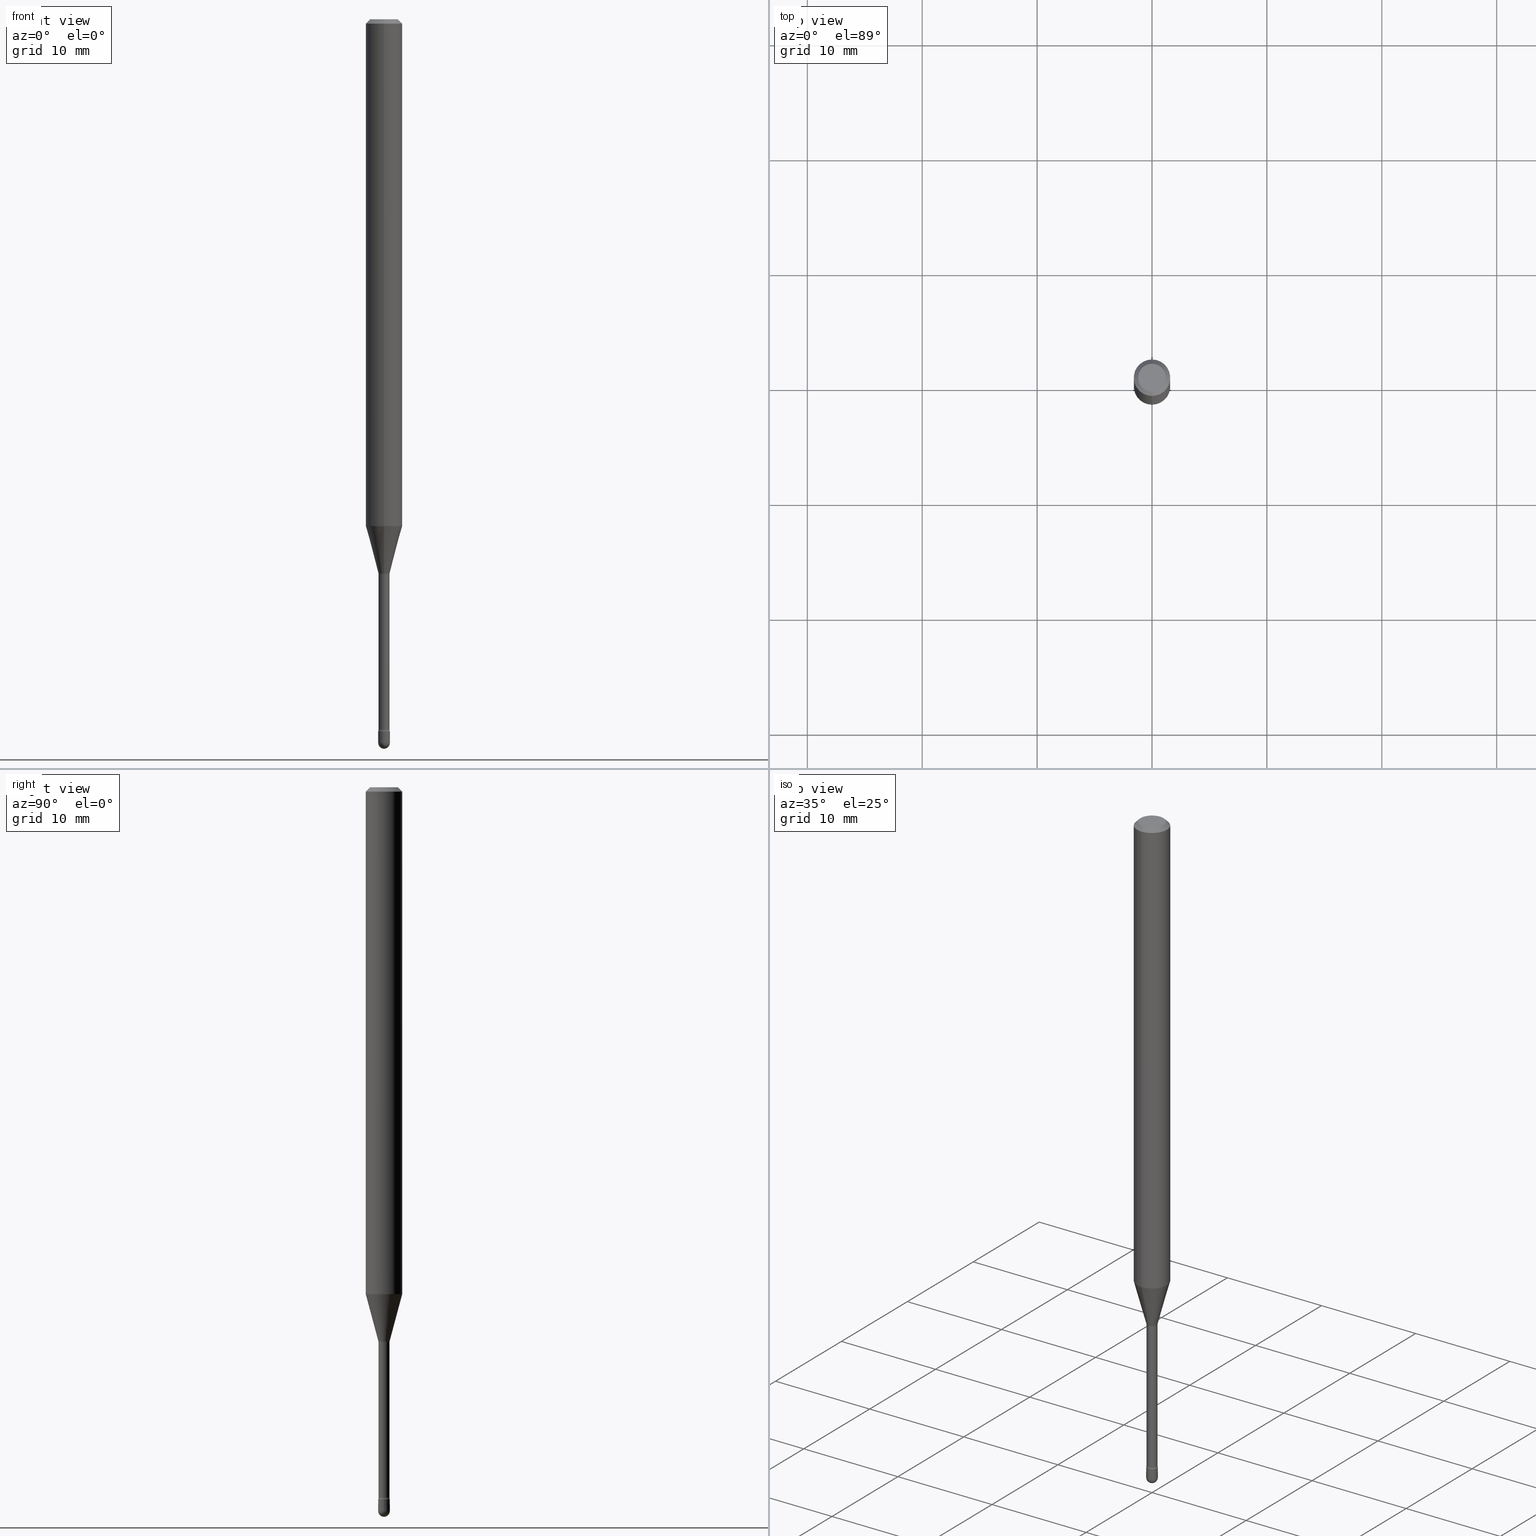
[diagram: canonical four-view strip — front | top / right | iso, engineering-drawing reading convention]
A machine part, canonical four-view strip (front | top / right | iso — engineering-drawing reading convention). The complete STEP part file that produces these views, byte-faithful:
ISO-10303-21;
HEADER;
FILE_DESCRIPTION (( 'STEP AP203' ),
    '1' );
FILE_NAME ('03920.STEP',
    '2024-04-09T21:10:38',
    ( '' ),
    ( '' ),
    'SwSTEP 2.0',
    'SolidWorks 2023',
    '' );
FILE_SCHEMA (( 'CONFIG_CONTROL_DESIGN' ));
ENDSEC;

DATA;
#1 = CARTESIAN_POINT ( 'NONE',  ( -1.312796983405020974E-16, -0.01880000000000004237, 5.437146037398076934E-16 ) ) ;
#2 = ORIENTED_EDGE ( 'NONE', *, *, #63, .F. ) ;
#3 = ORIENTED_EDGE ( 'NONE', *, *, #358, .T. ) ;
#4 = APPLICATION_PROTOCOL_DEFINITION ( 'international standard', 'config_control_design', 1994, #347 ) ;
#5 = AXIS2_PLACEMENT_3D ( 'NONE', #544, #328, #539 ) ;
#6 = EDGE_CURVE ( 'NONE', #454, #184, #68, .T. ) ;
#7 = CARTESIAN_POINT ( 'NONE',  ( 0.000000000000000000, 0.000000000000000000, 0.000000000000000000 ) ) ;
#8 = VECTOR ( 'NONE', #540, 39.37007874015748143 ) ;
#9 = AXIS2_PLACEMENT_3D ( 'NONE', #183, #300, #468 ) ;
#10 = CARTESIAN_POINT ( 'NONE',  ( 6.064762639339139522E-29, -8.658873720331001644E-15, -2.480000000000000426 ) ) ;
#11 = PRODUCT_RELATED_PRODUCT_CATEGORY ( 'detail', '', ( #19 ) ) ;
#12 = DIRECTION ( 'NONE',  ( 2.445418451658306189E-29, -3.491553449391568423E-15, -1.000000000000000000 ) ) ;
#13 = PLANE ( 'NONE',  #296 ) ;
#14 = EDGE_CURVE ( 'NONE', #398, #251, #387, .T. ) ;
#15 = AXIS2_PLACEMENT_3D ( 'NONE', #258, #342, #35 ) ;
#16 = VECTOR ( 'NONE', #241, 39.37007874015748143 ) ;
#17 = DIRECTION ( 'NONE',  ( -6.982962677686265922E-15, -1.000000000000000000, 3.491553449391569212E-15 ) ) ;
#18 = EDGE_LOOP ( 'NONE', ( #360, #233, #402, #432 ) ) ;
#19 = PRODUCT ( '03920', '03920', '', ( #235 ) ) ;
#20 = CARTESIAN_POINT ( 'NONE',  ( -4.364351673553916201E-16, -0.06250000000000000000, 6.962954894782191143E-16 ) ) ;
#21 = ORIENTED_EDGE ( 'NONE', *, *, #269, .T. ) ;
#22 = SECURITY_CLASSIFICATION ( '', '', #304 ) ;
#23 = DIRECTION ( 'NONE',  ( -1.000000000000000000, 7.105427357601001070E-15, -4.926315508542082329E-29 ) ) ;
#24 = ADVANCED_FACE ( 'NONE', ( #376 ), #211, .F. ) ;
#25 = ORIENTED_EDGE ( 'NONE', *, *, #507, .F. ) ;
#26 = DIRECTION ( 'NONE',  ( -1.000000000000000000, 6.982962677686265922E-15, -4.883557194083112340E-29 ) ) ;
#27 = CARTESIAN_POINT ( 'NONE',  ( 6.064762639339139522E-29, -8.658873720331001644E-15, -2.480000000000000426 ) ) ;
#28 = AXIS2_PLACEMENT_3D ( 'NONE', #326, #464, #543 ) ;
#29 = APPLICATION_PROTOCOL_DEFINITION ( 'international standard', 'config_control_design', 1994, #107 ) ;
#30 = FACE_OUTER_BOUND ( 'NONE', #161, .T. ) ;
#31 = CC_DESIGN_PERSON_AND_ORGANIZATION_ASSIGNMENT ( #521, #483, ( #373 ) ) ;
#32 = LOCAL_TIME ( 17, 10, 38.00000000000000000, #102 ) ;
#33 = CYLINDRICAL_SURFACE ( 'NONE', #341, 0.02000000000000000042 ) ;
#34 = EDGE_LOOP ( 'NONE', ( #190, #346, #490, #476 ) ) ;
#35 = DIRECTION ( 'NONE',  ( -6.982962677686265922E-15, -1.000000000000000000, 3.483106191921935554E-15 ) ) ;
#36 = AXIS2_PLACEMENT_3D ( 'NONE', #327, #541, #167 ) ;
#37 = AXIS2_PLACEMENT_3D ( 'NONE', #189, #193, #448 ) ;
#38 = DIRECTION ( 'NONE',  ( -1.000000000000000000, 6.982962677686265922E-15, -4.883557194083112340E-29 ) ) ;
#39 = ORIENTED_EDGE ( 'NONE', *, *, #53, .T. ) ;
#40 = EDGE_LOOP ( 'NONE', ( #194, #74, #559, #187 ) ) ;
#41 = COORDINATED_UNIVERSAL_TIME_OFFSET ( 5, 0, .BEHIND. ) ;
#42 = CARTESIAN_POINT ( 'NONE',  ( 0.000000000000000000, 0.000000000000000000, 0.000000000000000000 ) ) ;
#43 = ADVANCED_FACE ( 'NONE', ( #30 ), #351, .F. ) ;
#44 = CARTESIAN_POINT ( 'NONE',  ( 4.247470245999360012E-29, -6.064511936004368294E-15, -1.736909379709240531 ) ) ;
#45 = CIRCLE ( 'NONE', #15, 0.06250000000000000000 ) ;
#46 = ORIENTED_EDGE ( 'NONE', *, *, #115, .T. ) ;
#47 = VECTOR ( 'NONE', #548, 39.37007874015748143 ) ;
#48 = CALENDAR_DATE ( 2024, 9, 4 ) ;
#49 = CARTESIAN_POINT ( 'NONE',  ( 3.316907271900976096E-16, 0.04749999999999999362, 3.181610718927589537E-17 ) ) ;
#50 = EDGE_LOOP ( 'NONE', ( #227, #416, #436, #395 ) ) ;
#51 = ORIENTED_EDGE ( 'NONE', *, *, #430, .F. ) ;
#52 = PERSON_AND_ORGANIZATION ( #80, #542 ) ;
#53 = EDGE_CURVE ( 'NONE', #164, #170, #159, .T. ) ;
#54 = DIRECTION ( 'NONE',  ( -2.445468806185136597E-29, 3.491481338843145583E-15, 1.000000000000000000 ) ) ;
#55 = APPROVAL_PERSON_ORGANIZATION ( #275, #285, #230 ) ;
#56 = ORIENTED_EDGE ( 'NONE', *, *, #547, .F. ) ;
#57 = DIRECTION ( 'NONE',  ( -6.982962677686265922E-15, -1.000000000000000000, 0.000000000000000000 ) ) ;
#58 = CLOSED_SHELL ( 'NONE', ( #223, #72, #424, #100, #318 ) ) ;
#59 = AXIS2_PLACEMENT_3D ( 'NONE', #49, #324, #105 ) ;
#60 = DIRECTION ( 'NONE',  ( 1.000000000000000000, -6.982962677686235945E-15, 0.000000000000000000 ) ) ;
#61 = DIRECTION ( 'NONE',  ( 6.982962677686265922E-15, 1.000000000000000000, 0.000000000000000000 ) ) ;
#62 = LOCAL_TIME ( 17, 10, 38.00000000000000000, #191 ) ;
#63 = EDGE_CURVE ( 'NONE', #210, #511, #520, .T. ) ;
#64 = DIRECTION ( 'NONE',  ( 1.000000000000000000, -6.982962677686235945E-15, 0.000000000000000000 ) ) ;
#65 = MANIFOLD_SOLID_BREP ( 'Body-Move/Copy2[1]', #58 ) ;
#66 = VERTEX_POINT ( 'NONE', #509 ) ;
#67 = APPROVAL_DATE_TIME ( #322, #478 ) ;
#68 = CIRCLE ( 'NONE', #362, 0.01880000000000000074 ) ;
#69 = CIRCLE ( 'NONE', #196, 0.04749999999999999362 ) ;
#70 = FACE_OUTER_BOUND ( 'NONE', #303, .T. ) ;
#71 = CARTESIAN_POINT ( 'NONE',  ( 4.651220012893355916E-29, -6.640709477380055554E-15, -1.901974787463811323 ) ) ;
#72 = ADVANCED_FACE ( 'NONE', ( #249 ), #295, .T. ) ;
#73 = CARTESIAN_POINT ( 'NONE',  ( -4.364351673553493174E-16, -0.06250000000000607847, -1.736909379709240309 ) ) ;
#74 = ORIENTED_EDGE ( 'NONE', *, *, #554, .T. ) ;
#75 = DIMENSIONAL_EXPONENTS ( 1.000000000000000000, 0.000000000000000000, 0.000000000000000000, 0.000000000000000000, 0.000000000000000000, 0.000000000000000000, 0.000000000000000000 ) ;
#76 = MANIFOLD_SOLID_BREP ( 'Body-Move/Copy2[2]', #139 ) ;
#77 = CARTESIAN_POINT ( 'NONE',  ( -2.360241385057492693E-16, -0.03380000000000664417, -1.901974787463811323 ) ) ;
#78 = ORIENTED_EDGE ( 'NONE', *, *, #308, .F. ) ;
#79 = PERSON_AND_ORGANIZATION ( #80, #542 ) ;
#80 = PERSON ( 'UNSPECIFIED', 'UNSPECIFIED', 'UNSPECIFIED', ('UNSPECIFIED'), ('UNSPECIFIED'), ('UNSPECIFIED') ) ;
#81 = VECTOR ( 'NONE', #558, 39.37007874015748143 ) ;
#82 = ORIENTED_EDGE ( 'NONE', *, *, #14, .T. ) ;
#83 = CARTESIAN_POINT ( 'NONE',  ( 3.668127677487478919E-31, -5.237330174087381797E-17, -0.01500000000000008271 ) ) ;
#84 = ORIENTED_EDGE ( 'NONE', *, *, #53, .F. ) ;
#85 = CC_DESIGN_APPROVAL ( #285, ( #338 ) ) ;
#86 = CARTESIAN_POINT ( 'NONE',  ( 3.668127677487478919E-31, -5.237330174087381797E-17, -0.01500000000000008271 ) ) ;
#87 = UNCERTAINTY_MEASURE_WITH_UNIT (LENGTH_MEASURE( 1.000000000000000082E-05 ), #320, 'distance_accuracy_value', 'NONE');
#88 = CARTESIAN_POINT ( 'NONE',  ( 6.064762639339139522E-29, -8.658873720331001644E-15, -2.480000000000000426 ) ) ;
#89 = ORIENTED_EDGE ( 'NONE', *, *, #513, .T. ) ;
#90 = AXIS2_PLACEMENT_3D ( 'NONE', #536, #156, #106 ) ;
#91 = ORIENTED_EDGE ( 'NONE', *, *, #278, .F. ) ;
#92 = ADVANCED_FACE ( 'NONE', ( #499 ), #457, .T. ) ;
#93 = DIRECTION ( 'NONE',  ( -6.982962677686265922E-15, -1.000000000000000000, 3.483106191921935554E-15 ) ) ;
#94 = ORIENTED_EDGE ( 'NONE', *, *, #400, .T. ) ;
#95 =( NAMED_UNIT ( * ) PLANE_ANGLE_UNIT ( ) SI_UNIT ( $, .RADIAN. ) );
#96 = CARTESIAN_POINT ( 'NONE',  ( 6.064762639339139522E-29, -8.658873720331001644E-15, -2.480000000000000426 ) ) ;
#97 = PERSON_AND_ORGANIZATION_ROLE ( 'design_supplier' ) ;
#98 = LINE ( 'NONE', #316, #273 ) ;
#99 = AXIS2_PLACEMENT_3D ( 'NONE', #297, #186, #561 ) ;
#100 = ADVANCED_FACE ( 'NONE', ( #177 ), #302, .T. ) ;
#101 = AXIS2_PLACEMENT_3D ( 'NONE', #86, #470, #306 ) ;
#102 = COORDINATED_UNIVERSAL_TIME_OFFSET ( 5, 0, .BEHIND. ) ;
#103 = DIRECTION ( 'NONE',  ( -2.445418451658306189E-29, 3.491553449391568423E-15, 1.000000000000000000 ) ) ;
#104 = ORIENTED_EDGE ( 'NONE', *, *, #136, .F. ) ;
#105 = DIRECTION ( 'NONE',  ( 6.982962677686265922E-15, 1.000000000000000000, -3.491553449391568423E-15 ) ) ;
#106 = DIRECTION ( 'NONE',  ( -6.982962677686265922E-15, -1.000000000000000000, 3.491553449391569212E-15 ) ) ;
#107 = APPLICATION_CONTEXT ( 'configuration controlled 3d designs of mechanical parts and assemblies' ) ;
#108 = AXIS2_PLACEMENT_3D ( 'NONE', #172, #284, #329 ) ;
#109 = EDGE_CURVE ( 'NONE', #274, #384, #116, .T. ) ;
#110 = DIRECTION ( 'NONE',  ( 1.000000000000000000, -6.982962677686284065E-15, 0.000000000000000000 ) ) ;
#111 = CARTESIAN_POINT ( 'NONE',  ( 3.840629472727447874E-16, 0.04749999999999999362, -2.485923956665947867E-16 ) ) ;
#112 = DIRECTION ( 'NONE',  ( -2.445418451658306189E-29, 3.491553449391568423E-15, 1.000000000000000000 ) ) ;
#113 = DIRECTION ( 'NONE',  ( -6.982962677686265922E-15, -1.000000000000000000, 3.491553449391568817E-15 ) ) ;
#114 = ORIENTED_EDGE ( 'NONE', *, *, #269, .F. ) ;
#115 = EDGE_CURVE ( 'NONE', #66, #262, #439, .T. ) ;
#116 = CIRCLE ( 'NONE', #255, 0.06250000000000000000 ) ;
#117 = EDGE_LOOP ( 'NONE', ( #528, #516, #392, #84 ) ) ;
#118 = CIRCLE ( 'NONE', #5, 0.02000000000000000042 ) ;
#119 = DIRECTION ( 'NONE',  ( -6.982962677686266711E-15, -1.000000000000000000, 0.000000000000000000 ) ) ;
#120 = DIRECTION ( 'NONE',  ( -2.445418451658306189E-29, 3.491553449391568423E-15, 1.000000000000000000 ) ) ;
#121 = CC_DESIGN_DATE_AND_TIME_ASSIGNMENT ( #307, #531, ( #22 ) ) ;
#122 = DIRECTION ( 'NONE',  ( -6.982962677686265133E-15, -1.000000000000000000, 0.000000000000000000 ) ) ;
#123 = ORIENTED_EDGE ( 'NONE', *, *, #564, .T. ) ;
#124 = CARTESIAN_POINT ( 'NONE',  ( -0.02000000000000000042, -8.446935546402118183E-15, -2.440000000000000391 ) ) ;
#125 = CIRCLE ( 'NONE', #220, 0.01500000000000003240 ) ;
#126 = CARTESIAN_POINT ( 'NONE',  ( 4.641630426824874302E-29, -6.627291421879626172E-15, -1.898092501787273401 ) ) ;
#127 = AXIS2_PLACEMENT_3D ( 'NONE', #27, #381, #383 ) ;
#128 = CIRCLE ( 'NONE', #450, 0.02000000000000000042 ) ;
#129 = EDGE_CURVE ( 'NONE', #445, #274, #474, .T. ) ;
#130 = FACE_OUTER_BOUND ( 'NONE', #288, .T. ) ;
#131 = ORIENTED_EDGE ( 'NONE', *, *, #204, .F. ) ;
#132 = DESIGN_CONTEXT ( 'detailed design', #347, 'design' ) ;
#133 = APPROVAL_PERSON_ORGANIZATION ( #382, #145, #271 ) ;
#134 = VERTEX_POINT ( 'NONE', #264 ) ;
#135 = ORIENTED_EDGE ( 'NONE', *, *, #430, .T. ) ;
#136 = EDGE_CURVE ( 'NONE', #469, #466, #396, .T. ) ;
#137 = PERSON_AND_ORGANIZATION ( #80, #542 ) ;
#138 = DIRECTION ( 'NONE',  ( -2.445418451658306189E-29, 3.491553449391568423E-15, 1.000000000000000000 ) ) ;
#139 = CLOSED_SHELL ( 'NONE', ( #24, #535, #43, #369, #332, #92, #299, #485, #180, #375, #239, #163, #455, #216 ) ) ;
#140 = AXIS2_PLACEMENT_3D ( 'NONE', #10, #365, #61 ) ;
#141 = APPROVAL_STATUS ( 'not_yet_approved' ) ;
#142 = DIRECTION ( 'NONE',  ( 6.982962677686265133E-15, 1.000000000000000000, 0.000000000000000000 ) ) ;
#143 = ORIENTED_EDGE ( 'NONE', *, *, #109, .T. ) ;
#144 = DATE_AND_TIME ( #48, #32 ) ;
#145 = APPROVAL ( #434, 'UNSPECIFIED' ) ;
#146 = DIRECTION ( 'NONE',  ( -2.445418451658306189E-29, 3.491553449391568423E-15, 1.000000000000000000 ) ) ;
#147 = EDGE_LOOP ( 'NONE', ( #78, #553, #46, #313 ) ) ;
#148 = PERSON_AND_ORGANIZATION_ROLE ( 'design_owner' ) ;
#149 = AXIS2_PLACEMENT_3D ( 'NONE', #244, #410, #17 ) ;
#150 = DIRECTION ( 'NONE',  ( -2.445468806185136597E-29, 3.491481338843145583E-15, 1.000000000000000000 ) ) ;
#151 = ORIENTED_EDGE ( 'NONE', *, *, #325, .T. ) ;
#152 = CIRCLE ( 'NONE', #532, 0.01999999999999989286 ) ;
#153 = CIRCLE ( 'NONE', #232, 0.02000000000000000042 ) ;
#154 =( NAMED_UNIT ( * ) SI_UNIT ( $, .STERADIAN. ) SOLID_ANGLE_UNIT ( ) );
#155 = DIRECTION ( 'NONE',  ( 1.000000000000000000, -6.982962677686265922E-15, 4.876176775795935793E-29 ) ) ;
#156 = DIRECTION ( 'NONE',  ( -2.445418451658306189E-29, 3.491553449391568423E-15, 1.000000000000000000 ) ) ;
#157 = EDGE_CURVE ( 'NONE', #384, #274, #45, .T. ) ;
#158 = CARTESIAN_POINT ( 'NONE',  ( -4.364351673553912750E-16, -0.06250000000000005551, -0.01499999999999986587 ) ) ;
#159 = CIRCLE ( 'NONE', #127, 0.02000000000000000042 ) ;
#160 = CARTESIAN_POINT ( 'NONE',  ( -1.348487785899018972E-16, -0.01931111260567060575, -1.898092501787273401 ) ) ;
#161 = EDGE_LOOP ( 'NONE', ( #501, #442, #21, #475 ) ) ;
#162 = DIRECTION ( 'NONE',  ( -7.105427357601000281E-15, -1.000000000000000000, 0.000000000000000000 ) ) ;
#163 = ADVANCED_FACE ( 'NONE', ( #479 ), #340, .F. ) ;
#164 = VERTEX_POINT ( 'NONE', #388 ) ;
#165 = AXIS2_PLACEMENT_3D ( 'NONE', #294, #171, #374 ) ;
#166 = LINE ( 'NONE', #334, #237 ) ;
#167 = DIRECTION ( 'NONE',  ( -6.982962677686265922E-15, -1.000000000000000000, 3.491553449391568817E-15 ) ) ;
#168 = VECTOR ( 'NONE', #496, 39.37007874015748854 ) ;
#169 = CARTESIAN_POINT ( 'NONE',  ( 4.651124239852889729E-29, -6.640846629825066582E-15, -1.901974787463811323 ) ) ;
#170 = VERTEX_POINT ( 'NONE', #261 ) ;
#171 = DIRECTION ( 'NONE',  ( 1.000000000000000000, -7.105427357601001070E-15, 4.926316391641605447E-29 ) ) ;
#172 = CARTESIAN_POINT ( 'NONE',  ( 5.966943887091733341E-29, -8.519214466777275048E-15, -2.440000000000000391 ) ) ;
#173 = EDGE_CURVE ( 'NONE', #134, #66, #411, .T. ) ;
#174 = DIRECTION ( 'NONE',  ( 1.000000000000000000, -6.982962677686235945E-15, 0.000000000000000000 ) ) ;
#175 = CIRCLE ( 'NONE', #246, 0.01931111260566397564 ) ;
#176 = AXIS2_PLACEMENT_3D ( 'NONE', #267, #138, #435 ) ;
#177 = FACE_OUTER_BOUND ( 'NONE', #117, .T. ) ;
#178 = CARTESIAN_POINT ( 'NONE',  ( 0.02000000000000000042, -8.658873720331001644E-15, -2.440000000000000391 ) ) ;
#179 = VERTEX_POINT ( 'NONE', #481 ) ;
#180 = ADVANCED_FACE ( 'NONE', ( #518 ), #477, .T. ) ;
#181 = VERTEX_POINT ( 'NONE', #552 ) ;
#182 = CIRCLE ( 'NONE', #492, 0.01880000000000008401 ) ;
#183 = CARTESIAN_POINT ( 'NONE',  ( 5.952444956252308774E-29, -8.498864358049834295E-15, -2.434121224617320944 ) ) ;
#184 = VERTEX_POINT ( 'NONE', #339 ) ;
#185 = PERSON_AND_ORGANIZATION ( #80, #542 ) ;
#186 = DIRECTION ( 'NONE',  ( -2.445418451658306189E-29, 3.491553449391568423E-15, 1.000000000000000000 ) ) ;
#187 = ORIENTED_EDGE ( 'NONE', *, *, #493, .F. ) ;
#188 = ORIENTED_EDGE ( 'NONE', *, *, #493, .T. ) ;
#189 = CARTESIAN_POINT ( 'NONE',  ( 2.401634446869738422E-16, 0.03379999999999157290, -2.434121224617320944 ) ) ;
#190 = ORIENTED_EDGE ( 'NONE', *, *, #14, .F. ) ;
#191 = COORDINATED_UNIVERSAL_TIME_OFFSET ( 5, 0, .BEHIND. ) ;
#192 = CC_DESIGN_PERSON_AND_ORGANIZATION_ASSIGNMENT ( #185, #524, ( #338 ) ) ;
#193 = DIRECTION ( 'NONE',  ( 1.000000000000000000, -7.105427357601001070E-15, 4.926316391641605447E-29 ) ) ;
#194 = ORIENTED_EDGE ( 'NONE', *, *, #136, .T. ) ;
#195 = DIRECTION ( 'NONE',  ( -2.445468806185136597E-29, 3.491481338843145583E-15, 1.000000000000000000 ) ) ;
#196 = AXIS2_PLACEMENT_3D ( 'NONE', #566, #146, #534 ) ;
#197 = SHAPE_DEFINITION_REPRESENTATION ( #409, #215 ) ;
#198 = CARTESIAN_POINT ( 'NONE',  ( 5.966821022046268155E-29, -8.519390416515428324E-15, -2.440000000000000391 ) ) ;
#199 = EDGE_CURVE ( 'NONE', #170, #210, #557, .T. ) ;
#200 = DIRECTION ( 'NONE',  ( 6.982962677686265922E-15, 1.000000000000000000, -3.483106191921935554E-15 ) ) ;
#201 = ORIENTED_EDGE ( 'NONE', *, *, #234, .T. ) ;
#202 = CARTESIAN_POINT ( 'NONE',  ( 4.440892098501048202E-16, 0.06249999999999392153, -1.736909379709240753 ) ) ;
#203 = AXIS2_PLACEMENT_3D ( 'NONE', #236, #150, #64 ) ;
#204 = EDGE_CURVE ( 'NONE', #519, #164, #153, .T. ) ;
#205 = CARTESIAN_POINT ( 'NONE',  ( -1.312796983404552834E-16, -0.01880000000000664126, -1.901974787463811323 ) ) ;
#206 = ORIENTED_EDGE ( 'NONE', *, *, #473, .T. ) ;
#207 = DIRECTION ( 'NONE',  ( -6.982962677686265922E-15, -1.000000000000000000, 3.491553449391568817E-15 ) ) ;
#208 = DIRECTION ( 'NONE',  ( -2.445418451658306189E-29, 3.491553449391568423E-15, 1.000000000000000000 ) ) ;
#209 = DIRECTION ( 'NONE',  ( -2.445418451658306189E-29, 3.491553449391568423E-15, 1.000000000000000000 ) ) ;
#210 = VERTEX_POINT ( 'NONE', #178 ) ;
#211 = TOROIDAL_SURFACE ( 'NONE', #315, 0.03380000000000000365, 0.01500000000000003240 ) ;
#212 = CONICAL_SURFACE ( 'NONE', #459, 0.06250000000000000000, 0.7853981633974483900 ) ;
#213 = CARTESIAN_POINT ( 'NONE',  ( -0.02000000000000000042, -8.446935546402118183E-15, -2.480000000000000426 ) ) ;
#214 = DIRECTION ( 'NONE',  ( -6.982962677686265922E-15, -1.000000000000000000, 3.491553449391568817E-15 ) ) ;
#215 = ADVANCED_BREP_SHAPE_REPRESENTATION ( '03920', ( #65, #76, #252 ), #357 ) ;
#216 = ADVANCED_FACE ( 'NONE', ( #510 ), #413, .F. ) ;
#217 = CALENDAR_DATE ( 2024, 9, 4 ) ;
#218 = DIRECTION ( 'NONE',  ( 6.982962677686265133E-15, 1.000000000000000000, 0.000000000000000000 ) ) ;
#219 = APPROVAL_PERSON_ORGANIZATION ( #79, #478, #560 ) ;
#220 = AXIS2_PLACEMENT_3D ( 'NONE', #77, #26, #119 ) ;
#221 = FACE_OUTER_BOUND ( 'NONE', #277, .T. ) ;
#222 = AXIS2_PLACEMENT_3D ( 'NONE', #126, #112, #348 ) ;
#223 = ADVANCED_FACE ( 'NONE', ( #130 ), #33, .T. ) ;
#224 = VECTOR ( 'NONE', #352, 39.37007874015748143 ) ;
#225 = CARTESIAN_POINT ( 'NONE',  ( -2.360241385057367461E-16, -0.03380000000000856625, -2.434121224617320944 ) ) ;
#226 = DIRECTION ( 'NONE',  ( -6.982962677686265922E-15, -1.000000000000000000, 4.370956789862821150E-15 ) ) ;
#227 = ORIENTED_EDGE ( 'NONE', *, *, #292, .F. ) ;
#228 = PERSON_AND_ORGANIZATION_ROLE ( 'classification_officer' ) ;
#229 = LINE ( 'NONE', #523, #556 ) ;
#230 = APPROVAL_ROLE ( '' ) ;
#231 = DIRECTION ( 'NONE',  ( -1.000000000000000000, 6.982962677686265133E-15, -4.883557194083112340E-29 ) ) ;
#232 = AXIS2_PLACEMENT_3D ( 'NONE', #96, #427, #174 ) ;
#233 = ORIENTED_EDGE ( 'NONE', *, *, #173, .T. ) ;
#234 = EDGE_CURVE ( 'NONE', #519, #511, #229, .T. ) ;
#235 = MECHANICAL_CONTEXT ( 'NONE', #107, 'mechanical' ) ;
#236 = CARTESIAN_POINT ( 'NONE',  ( 6.064762639339139522E-29, -8.658873720331001644E-15, -2.480000000000000426 ) ) ;
#237 = VECTOR ( 'NONE', #333, 39.37007874015748143 ) ;
#238 = DIRECTION ( 'NONE',  ( -2.445418451658306189E-29, 3.491553449391568423E-15, 1.000000000000000000 ) ) ;
#239 = ADVANCED_FACE ( 'NONE', ( #221 ), #386, .F. ) ;
#240 = LINE ( 'NONE', #1, #488 ) ;
#241 = DIRECTION ( 'NONE',  ( -2.445418451658306189E-29, 3.491553449391568423E-15, 1.000000000000000000 ) ) ;
#242 = CARTESIAN_POINT ( 'NONE',  ( 1.421085471520795991E-16, 0.01999999999999147252, -2.440000000000000391 ) ) ;
#243 = CC_DESIGN_DATE_AND_TIME_ASSIGNMENT ( #144, #266, ( #338 ) ) ;
#244 = CARTESIAN_POINT ( 'NONE',  ( -1.169113584055446105E-44, 1.669184350826100908E-30, 4.780733988912460139E-16 ) ) ;
#245 = DIRECTION ( 'NONE',  ( -6.982962677686265922E-15, -1.000000000000000000, 0.000000000000000000 ) ) ;
#246 = AXIS2_PLACEMENT_3D ( 'NONE', #248, #286, #419 ) ;
#247 = CONICAL_SURFACE ( 'NONE', #317, 0.01931111260566397564, 0.2617993877991498519 ) ;
#248 = CARTESIAN_POINT ( 'NONE',  ( 4.641630426824874302E-29, -6.627291421879626172E-15, -1.898092501787273401 ) ) ;
#249 = FACE_OUTER_BOUND ( 'NONE', #461, .T. ) ;
#250 = DIRECTION ( 'NONE',  ( -2.438088387897960049E-29, 3.491481338843145188E-15, 1.000000000000000000 ) ) ;
#251 = VERTEX_POINT ( 'NONE', #537 ) ;
#252 = AXIS2_PLACEMENT_3D ( 'NONE', #354, #337, #517 ) ;
#253 = EDGE_CURVE ( 'NONE', #66, #454, #240, .T. ) ;
#254 = EDGE_LOOP ( 'NONE', ( #503, #353, #188, #549 ) ) ;
#255 = AXIS2_PLACEMENT_3D ( 'NONE', #83, #309, #93 ) ;
#256 =( LENGTH_UNIT ( ) NAMED_UNIT ( * ) SI_UNIT ( $, .METRE. ) );
#257 = DIRECTION ( 'NONE',  ( -1.000000000000000000, 6.982962677686265133E-15, -4.883557194083112340E-29 ) ) ;
#258 = CARTESIAN_POINT ( 'NONE',  ( 3.668127677487478919E-31, -5.237330174087381797E-17, -0.01500000000000008271 ) ) ;
#259 = ORIENTED_EDGE ( 'NONE', *, *, #407, .F. ) ;
#260 = EDGE_CURVE ( 'NONE', #506, #384, #98, .T. ) ;
#261 = CARTESIAN_POINT ( 'NONE',  ( 0.02000000000000000042, -8.728703347107863365E-15, -2.480000000000000426 ) ) ;
#262 = VERTEX_POINT ( 'NONE', #276 ) ;
#263 = AXIS2_PLACEMENT_3D ( 'NONE', #449, #323, #110 ) ;
#264 = CARTESIAN_POINT ( 'NONE',  ( 1.378452907375192457E-16, 0.01879999999999158386, -2.434121224617320944 ) ) ;
#265 = EDGE_LOOP ( 'NONE', ( #433, #463, #104, #51 ) ) ;
#266 = DATE_TIME_ROLE ( 'creation_date' ) ;
#267 = CARTESIAN_POINT ( 'NONE',  ( 4.651220012893355916E-29, -6.640709477380055554E-15, -1.901974787463811323 ) ) ;
#268 = ORIENTED_EDGE ( 'NONE', *, *, #525, .F. ) ;
#269 = EDGE_CURVE ( 'NONE', #418, #262, #128, .T. ) ;
#270 = EDGE_LOOP ( 'NONE', ( #56, #25, #206, #486 ) ) ;
#271 = APPROVAL_ROLE ( '' ) ;
#272 = DIRECTION ( 'NONE',  ( -6.982962677686265922E-15, -1.000000000000000000, 0.000000000000000000 ) ) ;
#273 = VECTOR ( 'NONE', #401, 39.37007874015748143 ) ;
#274 = VERTEX_POINT ( 'NONE', #441 ) ;
#275 = PERSON_AND_ORGANIZATION ( #80, #542 ) ;
#276 = CARTESIAN_POINT ( 'NONE',  ( -1.396592535536655829E-16, -0.02000000000000851097, -2.440000000000000391 ) ) ;
#277 = EDGE_LOOP ( 'NONE', ( #268, #114 ) ) ;
#278 = EDGE_CURVE ( 'NONE', #181, #179, #429, .T. ) ;
#279 = CC_DESIGN_SECURITY_CLASSIFICATION ( #22, ( #373 ) ) ;
#280 = FACE_OUTER_BOUND ( 'NONE', #471, .T. ) ;
#281 = CARTESIAN_POINT ( 'NONE',  ( 4.641630426824874302E-29, -6.627291421879626172E-15, -1.898092501787273401 ) ) ;
#282 = CARTESIAN_POINT ( 'NONE',  ( 2.906514588320749949E-16, 0.01931111260565734900, -1.898092501787273401 ) ) ;
#283 = FACE_OUTER_BOUND ( 'NONE', #18, .T. ) ;
#284 = DIRECTION ( 'NONE',  ( -2.445468806185136597E-29, 3.491481338843145583E-15, 1.000000000000000000 ) ) ;
#285 = APPROVAL ( #399, 'UNSPECIFIED' ) ;
#286 = DIRECTION ( 'NONE',  ( -2.445418451658306189E-29, 3.491553449391568423E-15, 1.000000000000000000 ) ) ;
#287 = EDGE_LOOP ( 'NONE', ( #94, #378 ) ) ;
#288 = EDGE_LOOP ( 'NONE', ( #389, #201, #2, #345, #562 ) ) ;
#289 = CIRCLE ( 'NONE', #37, 0.01499999999999998036 ) ;
#290 = DIRECTION ( 'NONE',  ( 1.000000000000000000, -6.982962677686265922E-15, 4.876176775795935793E-29 ) ) ;
#291 = DIRECTION ( 'NONE',  ( -2.445418451658306189E-29, 3.491553449391568423E-15, 1.000000000000000000 ) ) ;
#292 = EDGE_CURVE ( 'NONE', #506, #445, #69, .T. ) ;
#293 = ORIENTED_EDGE ( 'NONE', *, *, #260, .F. ) ;
#294 = CARTESIAN_POINT ( 'NONE',  ( 2.401634446869603823E-16, 0.03379999999999336313, -1.901974787463811323 ) ) ;
#295 = SPHERICAL_SURFACE ( 'NONE', #421, 0.01999999999999989286 ) ;
#296 = AXIS2_PLACEMENT_3D ( 'NONE', #380, #250, #290 ) ;
#297 = CARTESIAN_POINT ( 'NONE',  ( 5.952567525274821981E-29, -8.498688832233400382E-15, -2.434121224617320944 ) ) ;
#298 = ORIENTED_EDGE ( 'NONE', *, *, #253, .F. ) ;
#299 = ADVANCED_FACE ( 'NONE', ( #280 ), #247, .T. ) ;
#300 = DIRECTION ( 'NONE',  ( -2.445418451658306189E-29, 3.491553449391568423E-15, 1.000000000000000000 ) ) ;
#301 = CC_DESIGN_PERSON_AND_ORGANIZATION_ASSIGNMENT ( #52, #228, ( #22 ) ) ;
#302 = SPHERICAL_SURFACE ( 'NONE', #428, 0.01999999999999989286 ) ;
#303 = EDGE_LOOP ( 'NONE', ( #123, #3, #366, #298 ) ) ;
#304 = SECURITY_CLASSIFICATION_LEVEL ( 'unclassified' ) ;
#305 = CIRCLE ( 'NONE', #203, 0.02000000000000000042 ) ;
#306 = DIRECTION ( 'NONE',  ( 6.982962677686265922E-15, 1.000000000000000000, -3.483106191921935554E-15 ) ) ;
#307 = DATE_AND_TIME ( #422, #446 ) ;
#308 = EDGE_CURVE ( 'NONE', #134, #418, #289, .T. ) ;
#309 = DIRECTION ( 'NONE',  ( -2.445418451658306189E-29, 3.491553449391568423E-15, 1.000000000000000000 ) ) ;
#310 = EDGE_LOOP ( 'NONE', ( #293, #423, #356, #143 ) ) ;
#311 = APPROVAL_DATE_TIME ( #443, #145 ) ;
#312 = CYLINDRICAL_SURFACE ( 'NONE', #90, 0.06250000000000000000 ) ;
#313 = ORIENTED_EDGE ( 'NONE', *, *, #525, .T. ) ;
#314 = APPROVAL_DATE_TIME ( #487, #285 ) ;
#315 = AXIS2_PLACEMENT_3D ( 'NONE', #71, #208, #214 ) ;
#316 = CARTESIAN_POINT ( 'NONE',  ( -4.287811248607203282E-16, -0.06250000000000005551, -0.01499999999999986587 ) ) ;
#317 = AXIS2_PLACEMENT_3D ( 'NONE', #281, #238, #272 ) ;
#318 = ADVANCED_FACE ( 'NONE', ( #444 ), #495, .T. ) ;
#319 = EDGE_LOOP ( 'NONE', ( #472, #530, #39, #420, #482 ) ) ;
#320 =( CONVERSION_BASED_UNIT ( 'INCH', #565 ) LENGTH_UNIT ( ) NAMED_UNIT ( #75 ) );
#321 = CARTESIAN_POINT ( 'NONE',  ( 1.335820343228991114E-16, 0.01880000000000004237, 4.124321940426844331E-16 ) ) ;
#322 = DATE_AND_TIME ( #217, #550 ) ;
#323 = DIRECTION ( 'NONE',  ( -2.445468806185136597E-29, 3.491481338843145583E-15, 1.000000000000000000 ) ) ;
#324 = DIRECTION ( 'NONE',  ( 2.445418451658305909E-29, -3.491553449391568423E-15, -1.000000000000000000 ) ) ;
#325 = EDGE_CURVE ( 'NONE', #511, #210, #364, .T. ) ;
#326 = CARTESIAN_POINT ( 'NONE',  ( 4.247470245999360012E-29, -6.064511936004368294E-15, -1.736909379709240531 ) ) ;
#327 = CARTESIAN_POINT ( 'NONE',  ( 5.952567525274821981E-29, -8.498688832233400382E-15, -2.434121224617320944 ) ) ;
#328 = DIRECTION ( 'NONE',  ( -2.445418451658306189E-29, 3.491553449391568423E-15, 1.000000000000000000 ) ) ;
#329 = DIRECTION ( 'NONE',  ( 1.000000000000000000, -6.982962677686284065E-15, 0.000000000000000000 ) ) ;
#330 = LINE ( 'NONE', #160, #47 ) ;
#331 = CARTESIAN_POINT ( 'NONE',  ( 6.064762639339139522E-29, -8.658873720331001644E-15, -2.480000000000000426 ) ) ;
#332 = ADVANCED_FACE ( 'NONE', ( #403 ), #312, .T. ) ;
#333 = DIRECTION ( 'NONE',  ( -2.445418451658306189E-29, 3.491553449391568423E-15, 1.000000000000000000 ) ) ;
#334 = CARTESIAN_POINT ( 'NONE',  ( 4.440892098500625669E-16, 0.06250000000000000000, 2.598513083042730615E-16 ) ) ;
#335 = LOCAL_TIME ( 17, 10, 38.00000000000000000, #41 ) ;
#336 = CARTESIAN_POINT ( 'NONE',  ( 4.651124239852889729E-29, -6.640846629825066582E-15, -1.901974787463811323 ) ) ;
#337 = DIRECTION ( 'NONE',  ( 0.000000000000000000, 0.000000000000000000, 1.000000000000000000 ) ) ;
#338 = PRODUCT_DEFINITION ( 'UNKNOWN', '', #373, #132 ) ;
#339 = CARTESIAN_POINT ( 'NONE',  ( 1.335820343229585471E-16, 0.01879999999999335675, -1.901974787463811323 ) ) ;
#340 = TOROIDAL_SURFACE ( 'NONE', #99, 0.03380000000000006610, 0.01499999999999998557 ) ;
#341 = AXIS2_PLACEMENT_3D ( 'NONE', #42, #555, #344 ) ;
#342 = DIRECTION ( 'NONE',  ( -2.445418451658306189E-29, 3.491553449391568423E-15, 1.000000000000000000 ) ) ;
#343 = ORIENTED_EDGE ( 'NONE', *, *, #63, .T. ) ;
#344 = DIRECTION ( 'NONE',  ( 1.000000000000000000, -6.982962677686265922E-15, 4.876176775795935793E-29 ) ) ;
#345 = ORIENTED_EDGE ( 'NONE', *, *, #199, .F. ) ;
#346 = ORIENTED_EDGE ( 'NONE', *, *, #547, .T. ) ;
#347 = APPLICATION_CONTEXT ( 'configuration controlled 3d designs of mechanical parts and assemblies' ) ;
#348 = DIRECTION ( 'NONE',  ( -6.982962677686265922E-15, -1.000000000000000000, 0.000000000000000000 ) ) ;
#349 = EDGE_CURVE ( 'NONE', #170, #179, #538, .T. ) ;
#350 = CALENDAR_DATE ( 2024, 9, 4 ) ;
#351 = TOROIDAL_SURFACE ( 'NONE', #36, 0.03380000000000006610, 0.01499999999999998557 ) ;
#352 = DIRECTION ( 'NONE',  ( -2.445468806185136877E-29, 3.491481338843145188E-15, 1.000000000000000000 ) ) ;
#353 = ORIENTED_EDGE ( 'NONE', *, *, #414, .T. ) ;
#354 = CARTESIAN_POINT ( 'NONE',  ( 0.000000000000000000, 0.000000000000000000, 0.000000000000000000 ) ) ;
#355 = CARTESIAN_POINT ( 'NONE',  ( 2.023186697158078373E-45, -2.889381999441804652E-31, -8.274360682049528860E-17 ) ) ;
#356 = ORIENTED_EDGE ( 'NONE', *, *, #129, .T. ) ;
#357 =( GEOMETRIC_REPRESENTATION_CONTEXT ( 3 ) GLOBAL_UNCERTAINTY_ASSIGNED_CONTEXT ( ( #87 ) ) GLOBAL_UNIT_ASSIGNED_CONTEXT ( ( #320, #95, #154 ) ) REPRESENTATION_CONTEXT ( 'NONE', 'WORKASPACE' ) );
#358 = EDGE_CURVE ( 'NONE', #134, #184, #363, .T. ) ;
#359 = LINE ( 'NONE', #489, #168 ) ;
#360 = ORIENTED_EDGE ( 'NONE', *, *, #358, .F. ) ;
#361 = COORDINATED_UNIVERSAL_TIME_OFFSET ( 5, 0, .BEHIND. ) ;
#362 = AXIS2_PLACEMENT_3D ( 'NONE', #336, #120, #245 ) ;
#363 = LINE ( 'NONE', #321, #16 ) ;
#364 = CIRCLE ( 'NONE', #263, 0.02000000000000000042 ) ;
#365 = DIRECTION ( 'NONE',  ( 1.000000000000000000, -6.982962677686265922E-15, 4.883557194083112340E-29 ) ) ;
#366 = ORIENTED_EDGE ( 'NONE', *, *, #6, .F. ) ;
#367 = FACE_OUTER_BOUND ( 'NONE', #287, .T. ) ;
#368 = ORIENTED_EDGE ( 'NONE', *, *, #391, .F. ) ;
#369 = ADVANCED_FACE ( 'NONE', ( #406 ), #212, .T. ) ;
#370 = CARTESIAN_POINT ( 'NONE',  ( -3.773273898774340269E-16, -0.04749999999999999362, 8.310518202560420951E-17 ) ) ;
#371 = AXIS2_PLACEMENT_3D ( 'NONE', #545, #291, #458 ) ;
#372 = LINE ( 'NONE', #20, #8 ) ;
#373 = PRODUCT_DEFINITION_FORMATION_WITH_SPECIFIED_SOURCE ( 'ANY', '', #19, .NOT_KNOWN. ) ;
#374 = DIRECTION ( 'NONE',  ( 7.105427357600999492E-15, 1.000000000000000000, 0.000000000000000000 ) ) ;
#375 = ADVANCED_FACE ( 'NONE', ( #367 ), #484, .F. ) ;
#376 = FACE_OUTER_BOUND ( 'NONE', #34, .T. ) ;
#377 = DIRECTION ( 'NONE',  ( -6.982962677686265922E-15, -1.000000000000000000, 0.000000000000000000 ) ) ;
#378 = ORIENTED_EDGE ( 'NONE', *, *, #292, .T. ) ;
#379 = AXIS2_PLACEMENT_3D ( 'NONE', #355, #451, #526 ) ;
#380 = CARTESIAN_POINT ( 'NONE',  ( 5.966943887091733341E-29, -8.519214466777275048E-15, -2.440000000000000391 ) ) ;
#381 = DIRECTION ( 'NONE',  ( -2.445468806185136597E-29, 3.491481338843145583E-15, 1.000000000000000000 ) ) ;
#382 = PERSON_AND_ORGANIZATION ( #80, #542 ) ;
#383 = DIRECTION ( 'NONE',  ( 1.000000000000000000, -6.982962677686235945E-15, 0.000000000000000000 ) ) ;
#384 = VERTEX_POINT ( 'NONE', #158 ) ;
#385 = CC_DESIGN_PERSON_AND_ORGANIZATION_ASSIGNMENT ( #393, #148, ( #19 ) ) ;
#386 = PLANE ( 'NONE',  #533 ) ;
#387 = CIRCLE ( 'NONE', #371, 0.01931111260566397564 ) ;
#388 = CARTESIAN_POINT ( 'NONE',  ( -1.421085471519589527E-16, -0.02000000000000860464, -2.480000000000000426 ) ) ;
#389 = ORIENTED_EDGE ( 'NONE', *, *, #407, .T. ) ;
#390 = DIRECTION ( 'NONE',  ( -6.982962677686263555E-15, -1.000000000000000000, 0.000000000000000000 ) ) ;
#391 = EDGE_CURVE ( 'NONE', #398, #466, #359, .T. ) ;
#392 = ORIENTED_EDGE ( 'NONE', *, *, #349, .F. ) ;
#393 = PERSON_AND_ORGANIZATION ( #80, #542 ) ;
#394 = CARTESIAN_POINT ( 'NONE',  ( 4.364351673553919652E-16, 0.06249999999999995143, -0.01500000000000030129 ) ) ;
#395 = ORIENTED_EDGE ( 'NONE', *, *, #129, .F. ) ;
#396 = CIRCLE ( 'NONE', #467, 0.06250000000000000000 ) ;
#397 = CARTESIAN_POINT ( 'NONE',  ( 6.064762639339139522E-29, -8.658873720331001644E-15, -2.480000000000000426 ) ) ;
#398 = VERTEX_POINT ( 'NONE', #282 ) ;
#399 = APPROVAL_STATUS ( 'not_yet_approved' ) ;
#400 = EDGE_CURVE ( 'NONE', #445, #506, #546, .T. ) ;
#401 = DIRECTION ( 'NONE',  ( -4.851104656540964275E-15, -0.7071067811865500152, -0.7071067811865450192 ) ) ;
#402 = ORIENTED_EDGE ( 'NONE', *, *, #253, .T. ) ;
#403 = FACE_OUTER_BOUND ( 'NONE', #40, .T. ) ;
#404 = DIRECTION ( 'NONE',  ( -2.445418451658306189E-29, 3.491553449391568423E-15, 1.000000000000000000 ) ) ;
#405 = AXIS2_PLACEMENT_3D ( 'NONE', #397, #195, #60 ) ;
#406 = FACE_OUTER_BOUND ( 'NONE', #50, .T. ) ;
#407 = EDGE_CURVE ( 'NONE', #179, #519, #305, .T. ) ;
#408 = DIRECTION ( 'NONE',  ( -2.445418451658306189E-29, 3.491553449391568423E-15, 1.000000000000000000 ) ) ;
#409 = PRODUCT_DEFINITION_SHAPE ( 'NONE', 'NONE',  #338 ) ;
#410 = DIRECTION ( 'NONE',  ( -2.445418451658306189E-29, 3.491553449391568423E-15, 1.000000000000000000 ) ) ;
#411 = CIRCLE ( 'NONE', #9, 0.01880000000000008401 ) ;
#412 = EDGE_LOOP ( 'NONE', ( #343, #151 ) ) ;
#413 = TOROIDAL_SURFACE ( 'NONE', #176, 0.03380000000000000365, 0.01500000000000003240 ) ;
#414 = EDGE_CURVE ( 'NONE', #466, #469, #522, .T. ) ;
#415 = CARTESIAN_POINT ( 'NONE',  ( -1.169113584055446105E-44, 1.669184350826100908E-30, 4.780733988912460139E-16 ) ) ;
#416 = ORIENTED_EDGE ( 'NONE', *, *, #260, .T. ) ;
#417 = CARTESIAN_POINT ( 'NONE',  ( 6.064762639339139522E-29, -8.658873720331001644E-15, -2.480000000000000426 ) ) ;
#418 = VERTEX_POINT ( 'NONE', #242 ) ;
#419 = DIRECTION ( 'NONE',  ( -6.982962677686265922E-15, -1.000000000000000000, 0.000000000000000000 ) ) ;
#420 = ORIENTED_EDGE ( 'NONE', *, *, #199, .T. ) ;
#421 = AXIS2_PLACEMENT_3D ( 'NONE', #331, #257, #218 ) ;
#422 = CALENDAR_DATE ( 2024, 9, 4 ) ;
#423 = ORIENTED_EDGE ( 'NONE', *, *, #400, .F. ) ;
#424 = ADVANCED_FACE ( 'NONE', ( #497 ), #13, .T. ) ;
#425 = CC_DESIGN_APPROVAL ( #145, ( #373 ) ) ;
#426 = DIRECTION ( 'NONE',  ( -2.445468806185136877E-29, 3.491481338843145188E-15, 1.000000000000000000 ) ) ;
#427 = DIRECTION ( 'NONE',  ( -2.445468806185136597E-29, 3.491481338843145583E-15, 1.000000000000000000 ) ) ;
#428 = AXIS2_PLACEMENT_3D ( 'NONE', #88, #231, #142 ) ;
#429 = CIRCLE ( 'NONE', #140, 0.01999999999999989286 ) ;
#430 = EDGE_CURVE ( 'NONE', #251, #469, #330, .T. ) ;
#431 = DIRECTION ( 'NONE',  ( -2.445418451658306189E-29, 3.491553449391568423E-15, 1.000000000000000000 ) ) ;
#432 = ORIENTED_EDGE ( 'NONE', *, *, #465, .F. ) ;
#433 = ORIENTED_EDGE ( 'NONE', *, *, #507, .T. ) ;
#434 = APPROVAL_STATUS ( 'not_yet_approved' ) ;
#435 = DIRECTION ( 'NONE',  ( -6.982962677686265922E-15, -1.000000000000000000, 3.491553449391568817E-15 ) ) ;
#436 = ORIENTED_EDGE ( 'NONE', *, *, #157, .T. ) ;
#437 = CARTESIAN_POINT ( 'NONE',  ( 0.02000000000000000042, -1.396592535537253145E-16, 9.752353551591871936E-31 ) ) ;
#438 = ORIENTED_EDGE ( 'NONE', *, *, #414, .F. ) ;
#439 = CIRCLE ( 'NONE', #563, 0.01499999999999998904 ) ;
#440 = CIRCLE ( 'NONE', #494, 0.01880000000000000074 ) ;
#441 = CARTESIAN_POINT ( 'NONE',  ( 4.440892098501054119E-16, 0.06249999999999995837, -0.01500000000000030129 ) ) ;
#442 = ORIENTED_EDGE ( 'NONE', *, *, #308, .T. ) ;
#443 = DATE_AND_TIME ( #551, #335 ) ;
#444 = FACE_OUTER_BOUND ( 'NONE', #319, .T. ) ;
#445 = VERTEX_POINT ( 'NONE', #111 ) ;
#446 = LOCAL_TIME ( 17, 10, 38.00000000000000000, #361 ) ;
#447 = AXIS2_PLACEMENT_3D ( 'NONE', #502, #209, #113 ) ;
#448 = DIRECTION ( 'NONE',  ( 7.105427357601005014E-15, 1.000000000000000000, 0.000000000000000000 ) ) ;
#449 = CARTESIAN_POINT ( 'NONE',  ( 5.966943887091733341E-29, -8.519214466777275048E-15, -2.440000000000000391 ) ) ;
#450 = AXIS2_PLACEMENT_3D ( 'NONE', #198, #404, #57 ) ;
#451 = DIRECTION ( 'NONE',  ( -2.445418451658306189E-29, 3.491553449391568423E-15, 1.000000000000000000 ) ) ;
#452 = CIRCLE ( 'NONE', #165, 0.01500000000000003240 ) ;
#453 = CYLINDRICAL_SURFACE ( 'NONE', #447, 0.01880000000000004237 ) ;
#454 = VERTEX_POINT ( 'NONE', #205 ) ;
#455 = ADVANCED_FACE ( 'NONE', ( #283 ), #453, .T. ) ;
#456 = CYLINDRICAL_SURFACE ( 'NONE', #527, 0.01880000000000004237 ) ;
#457 = CONICAL_SURFACE ( 'NONE', #222, 0.01931111260566397564, 0.2617993877991498519 ) ;
#458 = DIRECTION ( 'NONE',  ( -6.982962677686265922E-15, -1.000000000000000000, 0.000000000000000000 ) ) ;
#459 = AXIS2_PLACEMENT_3D ( 'NONE', #529, #12, #200 ) ;
#460 = CYLINDRICAL_SURFACE ( 'NONE', #149, 0.06250000000000000000 ) ;
#461 = EDGE_LOOP ( 'NONE', ( #91, #89, #131, #259 ) ) ;
#462 = DIRECTION ( 'NONE',  ( -2.445418451658306189E-29, 3.491553449391568423E-15, 1.000000000000000000 ) ) ;
#463 = ORIENTED_EDGE ( 'NONE', *, *, #391, .T. ) ;
#464 = DIRECTION ( 'NONE',  ( -2.445418451658306189E-29, 3.491553449391568423E-15, 1.000000000000000000 ) ) ;
#465 = EDGE_CURVE ( 'NONE', #184, #454, #440, .T. ) ;
#466 = VERTEX_POINT ( 'NONE', #202 ) ;
#467 = AXIS2_PLACEMENT_3D ( 'NONE', #44, #431, #226 ) ;
#468 = DIRECTION ( 'NONE',  ( -6.982962677686265133E-15, -1.000000000000000000, 0.000000000000000000 ) ) ;
#469 = VERTEX_POINT ( 'NONE', #73 ) ;
#470 = DIRECTION ( 'NONE',  ( 2.445418451658306189E-29, -3.491553449391568423E-15, -1.000000000000000000 ) ) ;
#471 = EDGE_LOOP ( 'NONE', ( #368, #82, #135, #438 ) ) ;
#472 = ORIENTED_EDGE ( 'NONE', *, *, #234, .F. ) ;
#473 = EDGE_CURVE ( 'NONE', #251, #454, #125, .T. ) ;
#474 = LINE ( 'NONE', #394, #81 ) ;
#475 = ORIENTED_EDGE ( 'NONE', *, *, #115, .F. ) ;
#476 = ORIENTED_EDGE ( 'NONE', *, *, #473, .F. ) ;
#477 = CONICAL_SURFACE ( 'NONE', #101, 0.06250000000000000000, 0.7853981633974483900 ) ;
#478 = APPROVAL ( #141, 'UNSPECIFIED' ) ;
#479 = FACE_OUTER_BOUND ( 'NONE', #147, .T. ) ;
#480 = COORDINATED_UNIVERSAL_TIME_OFFSET ( 5, 0, .BEHIND. ) ;
#481 = CARTESIAN_POINT ( 'NONE',  ( 1.396592535537856130E-16, 0.01999999999999128517, -2.480000000000000426 ) ) ;
#482 = ORIENTED_EDGE ( 'NONE', *, *, #325, .F. ) ;
#483 = PERSON_AND_ORGANIZATION_ROLE ( 'creator' ) ;
#484 = PLANE ( 'NONE',  #59 ) ;
#485 = ADVANCED_FACE ( 'NONE', ( #500 ), #460, .T. ) ;
#486 = ORIENTED_EDGE ( 'NONE', *, *, #6, .T. ) ;
#487 = DATE_AND_TIME ( #350, #62 ) ;
#488 = VECTOR ( 'NONE', #103, 39.37007874015748143 ) ;
#489 = CARTESIAN_POINT ( 'NONE',  ( 1.372137078140447505E-16, 0.01931111260565734900, -1.898092501787273401 ) ) ;
#490 = ORIENTED_EDGE ( 'NONE', *, *, #465, .T. ) ;
#491 = DIRECTION ( 'NONE',  ( -6.982962677686265922E-15, -1.000000000000000000, 3.491553449391568423E-15 ) ) ;
#492 = AXIS2_PLACEMENT_3D ( 'NONE', #505, #508, #122 ) ;
#493 = EDGE_CURVE ( 'NONE', #469, #384, #372, .T. ) ;
#494 = AXIS2_PLACEMENT_3D ( 'NONE', #169, #408, #377 ) ;
#495 = CYLINDRICAL_SURFACE ( 'NONE', #504, 0.02000000000000000042 ) ;
#496 = DIRECTION ( 'NONE',  ( 1.839019923739597160E-15, 0.2588190451025245142, 0.9659258262890670910 ) ) ;
#497 = FACE_OUTER_BOUND ( 'NONE', #412, .T. ) ;
#498 = CC_DESIGN_PERSON_AND_ORGANIZATION_ASSIGNMENT ( #137, #97, ( #373 ) ) ;
#499 = FACE_OUTER_BOUND ( 'NONE', #265, .T. ) ;
#500 = FACE_OUTER_BOUND ( 'NONE', #254, .T. ) ;
#501 = ORIENTED_EDGE ( 'NONE', *, *, #173, .F. ) ;
#502 = CARTESIAN_POINT ( 'NONE',  ( -1.169113584055446105E-44, 1.669184350826100908E-30, 4.780733988912460139E-16 ) ) ;
#503 = ORIENTED_EDGE ( 'NONE', *, *, #554, .F. ) ;
#504 = AXIS2_PLACEMENT_3D ( 'NONE', #7, #54, #155 ) ;
#505 = CARTESIAN_POINT ( 'NONE',  ( 5.952444956252308774E-29, -8.498864358049834295E-15, -2.434121224617320944 ) ) ;
#506 = VERTEX_POINT ( 'NONE', #370 ) ;
#507 = EDGE_CURVE ( 'NONE', #251, #398, #175, .T. ) ;
#508 = DIRECTION ( 'NONE',  ( -2.445418451658306189E-29, 3.491553449391568423E-15, 1.000000000000000000 ) ) ;
#509 = CARTESIAN_POINT ( 'NONE',  ( -1.312796983404428588E-16, -0.01880000000000858068, -2.434121224617320944 ) ) ;
#510 = FACE_OUTER_BOUND ( 'NONE', #270, .T. ) ;
#511 = VERTEX_POINT ( 'NONE', #124 ) ;
#512 = CARTESIAN_POINT ( 'NONE',  ( 1.396592535537849721E-16, 0.01999999999999147945, -2.440000000000000391 ) ) ;
#513 = EDGE_CURVE ( 'NONE', #181, #164, #152, .T. ) ;
#514 = CC_DESIGN_APPROVAL ( #478, ( #22 ) ) ;
#515 = DIRECTION ( 'NONE',  ( -2.445418451658305909E-29, 3.491553449391568423E-15, 1.000000000000000000 ) ) ;
#516 = ORIENTED_EDGE ( 'NONE', *, *, #278, .T. ) ;
#517 = DIRECTION ( 'NONE',  ( 1.000000000000000000, 0.000000000000000000, 0.000000000000000000 ) ) ;
#518 = FACE_OUTER_BOUND ( 'NONE', #310, .T. ) ;
#519 = VERTEX_POINT ( 'NONE', #213 ) ;
#520 = CIRCLE ( 'NONE', #108, 0.02000000000000000042 ) ;
#521 = PERSON_AND_ORGANIZATION ( #80, #542 ) ;
#522 = CIRCLE ( 'NONE', #28, 0.06250000000000000000 ) ;
#523 = CARTESIAN_POINT ( 'NONE',  ( -0.02000000000000000042, 1.421085471520200401E-16, -9.837870180509812545E-31 ) ) ;
#524 = PERSON_AND_ORGANIZATION_ROLE ( 'creator' ) ;
#525 = EDGE_CURVE ( 'NONE', #262, #418, #118, .T. ) ;
#526 = DIRECTION ( 'NONE',  ( -6.982962677686266711E-15, -1.000000000000000000, 3.491553449391568817E-15 ) ) ;
#527 = AXIS2_PLACEMENT_3D ( 'NONE', #415, #462, #207 ) ;
#528 = ORIENTED_EDGE ( 'NONE', *, *, #513, .F. ) ;
#529 = CARTESIAN_POINT ( 'NONE',  ( 3.668127677487478919E-31, -5.237330174087381797E-17, -0.01500000000000008271 ) ) ;
#530 = ORIENTED_EDGE ( 'NONE', *, *, #204, .T. ) ;
#531 = DATE_TIME_ROLE ( 'classification_date' ) ;
#532 = AXIS2_PLACEMENT_3D ( 'NONE', #417, #23, #162 ) ;
#533 = AXIS2_PLACEMENT_3D ( 'NONE', #512, #515, #491 ) ;
#534 = DIRECTION ( 'NONE',  ( -6.982962677686266711E-15, -1.000000000000000000, 3.491553449391568817E-15 ) ) ;
#535 = ADVANCED_FACE ( 'NONE', ( #70 ), #456, .T. ) ;
#536 = CARTESIAN_POINT ( 'NONE',  ( -1.169113584055446105E-44, 1.669184350826100908E-30, 4.780733988912460139E-16 ) ) ;
#537 = CARTESIAN_POINT ( 'NONE',  ( -1.348487785899018972E-16, -0.01931111260567060575, -1.898092501787273401 ) ) ;
#538 = CIRCLE ( 'NONE', #405, 0.02000000000000000042 ) ;
#539 = DIRECTION ( 'NONE',  ( -6.982962677686265922E-15, -1.000000000000000000, 0.000000000000000000 ) ) ;
#540 = DIRECTION ( 'NONE',  ( -2.445418451658306189E-29, 3.491553449391568423E-15, 1.000000000000000000 ) ) ;
#541 = DIRECTION ( 'NONE',  ( -2.445418451658306189E-29, 3.491553449391568423E-15, 1.000000000000000000 ) ) ;
#542 = ORGANIZATION ( 'UNSPECIFIED', 'UNSPECIFIED', '' ) ;
#543 = DIRECTION ( 'NONE',  ( -6.982962677686265922E-15, -1.000000000000000000, 4.370956789862821150E-15 ) ) ;
#544 = CARTESIAN_POINT ( 'NONE',  ( 5.966821022046268155E-29, -8.519390416515428324E-15, -2.440000000000000391 ) ) ;
#545 = CARTESIAN_POINT ( 'NONE',  ( 4.641630426824874302E-29, -6.627291421879626172E-15, -1.898092501787273401 ) ) ;
#546 = CIRCLE ( 'NONE', #379, 0.04749999999999999362 ) ;
#547 = EDGE_CURVE ( 'NONE', #398, #184, #452, .T. ) ;
#548 = DIRECTION ( 'NONE',  ( -1.807323732225327378E-15, -0.2588190451025177974, 0.9659258262890690894 ) ) ;
#549 = ORIENTED_EDGE ( 'NONE', *, *, #109, .F. ) ;
#550 = LOCAL_TIME ( 17, 10, 38.00000000000000000, #480 ) ;
#551 = CALENDAR_DATE ( 2024, 9, 4 ) ;
#552 = CARTESIAN_POINT ( 'NONE',  ( 6.114527181752021441E-29, -8.727478700308718159E-15, -2.500000000000000000 ) ) ;
#553 = ORIENTED_EDGE ( 'NONE', *, *, #564, .F. ) ;
#554 = EDGE_CURVE ( 'NONE', #466, #274, #166, .T. ) ;
#555 = DIRECTION ( 'NONE',  ( -2.445468806185136597E-29, 3.491481338843145583E-15, 1.000000000000000000 ) ) ;
#556 = VECTOR ( 'NONE', #426, 39.37007874015748143 ) ;
#557 = LINE ( 'NONE', #437, #224 ) ;
#558 = DIRECTION ( 'NONE',  ( 4.937700262164548042E-15, 0.7071067811865451302, -0.7071067811865499042 ) ) ;
#559 = ORIENTED_EDGE ( 'NONE', *, *, #157, .F. ) ;
#560 = APPROVAL_ROLE ( '' ) ;
#561 = DIRECTION ( 'NONE',  ( -6.982962677686265922E-15, -1.000000000000000000, 3.491553449391568817E-15 ) ) ;
#562 = ORIENTED_EDGE ( 'NONE', *, *, #349, .T. ) ;
#563 = AXIS2_PLACEMENT_3D ( 'NONE', #225, #38, #390 ) ;
#564 = EDGE_CURVE ( 'NONE', #66, #134, #182, .T. ) ;
#565 = LENGTH_MEASURE_WITH_UNIT ( LENGTH_MEASURE( 0.02539999999999999897 ), #256 );
#566 = CARTESIAN_POINT ( 'NONE',  ( 2.023186697158078373E-45, -2.889381999441804652E-31, -8.274360682049528860E-17 ) ) ;
ENDSEC;
END-ISO-10303-21;
